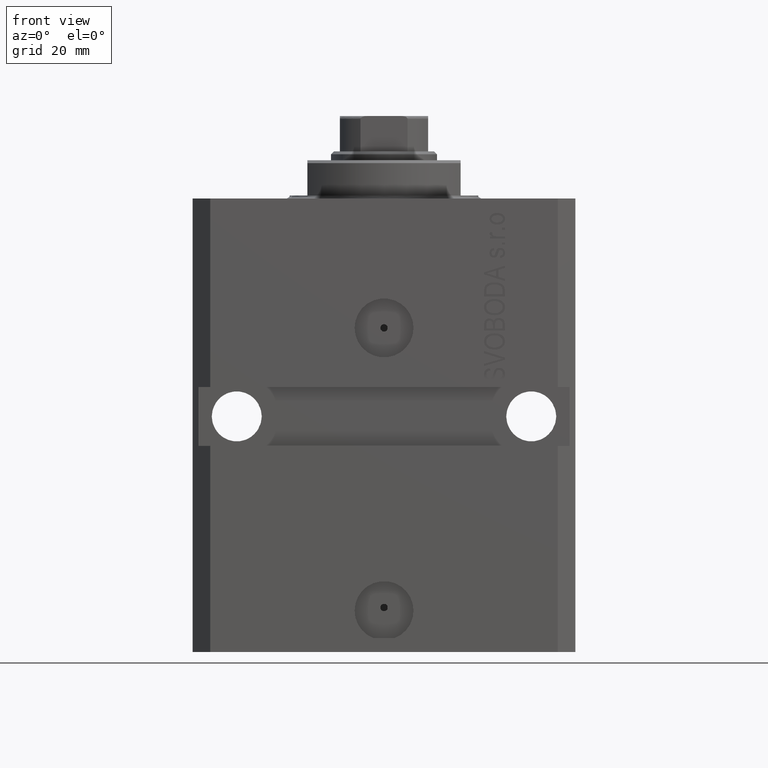
[diagram: clean part render]
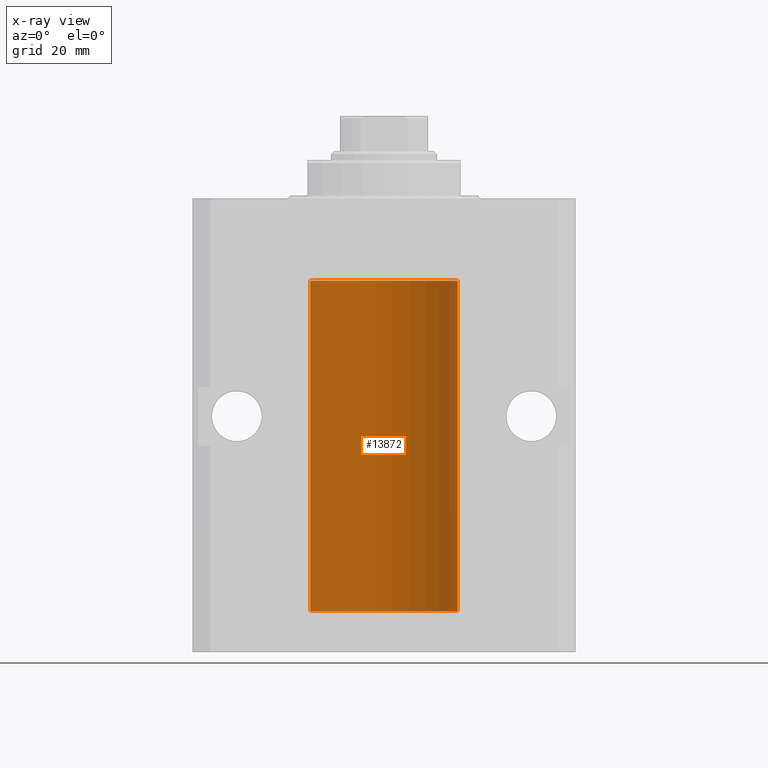
[diagram: x-ray — body ghosted, one internal face saturated and labeled with its STEP entity id]
A machine part, front view, then the same camera in x-ray: the body is ghosted and one INTERNAL B-rep face — a face not visible from any outside direction — is saturated and labeled: STEP entity #13872.
In plain terms, the highlighted cylindrical surface (partial cylindrical patch) has radius 12.5 mm, axis along (0, 0, 1).
Its self-contained STEP definition (entity closure, byte-faithful):
#57 = CARTESIAN_POINT ( 'NONE',  ( -12.49999999999999645, 0.08260426088728485550, -64.37499999999998579 ) ) ;
#352 = CARTESIAN_POINT ( 'NONE',  ( -12.49625855304193678, 0.3150454781038042329, -21.45402800297484802 ) ) ;
#655 = EDGE_CURVE ( 'NONE', #11588, #24028, #35823, .T. ) ;
#827 = CARTESIAN_POINT ( 'NONE',  ( -12.48436376893640443, 0.6250290278979917513, -22.08132082824473486 ) ) ;
#1000 = CARTESIAN_POINT ( 'NONE',  ( -12.48436376893640265, 0.6250290278979918623, -65.08132082824472775 ) ) ;
#1458 = VERTEX_POINT ( 'NONE', #25456 ) ;
#2059 = EDGE_CURVE ( 'NONE', #39254, #27133, #15784, .T. ) ;
#3106 = DIRECTION ( 'NONE',  ( 0.000000000000000000, 0.000000000000000000, 1.000000000000000000 ) ) ;
#3694 = CARTESIAN_POINT ( 'NONE',  ( -12.50000000000017941, 3.883381646606358354E-13, -22.62500000000358824 ) ) ;
#5340 = EDGE_CURVE ( 'NONE', #45628, #12289, #14874, .T. ) ;
#7133 = DIRECTION ( 'NONE',  ( -0.000000000000000000, -0.000000000000000000, 1.000000000000000000 ) ) ;
#7444 = CARTESIAN_POINT ( 'NONE',  ( -12.48810268015257741, 0.5573155909661293705, -64.67347410093867666 ) ) ;
#7506 = CARTESIAN_POINT ( 'NONE',  ( -12.48809959379011403, 0.5462151254764975317, -22.31461370481611795 ) ) ;
#9125 = ORIENTED_EDGE ( 'NONE', *, *, #19636, .T. ) ;
#10409 = ORIENTED_EDGE ( 'NONE', *, *, #23980, .T. ) ;
#11069 = CARTESIAN_POINT ( 'NONE',  ( -12.50000000000000000, 1.530808498934191521E-15, -70.09999999999999432 ) ) ;
#11545 = CARTESIAN_POINT ( 'NONE',  ( -12.50000000000000000, 1.530808498934191521E-15, -13.99999999999999822 ) ) ;
#11588 = VERTEX_POINT ( 'NONE', #28089 ) ;
#11956 = CARTESIAN_POINT ( 'NONE',  ( -12.49999999999999822, 0.1631761135151225950, -65.62499999999985789 ) ) ;
#12289 = VERTEX_POINT ( 'NONE', #35475 ) ;
#13499 = CARTESIAN_POINT ( 'NONE',  ( -12.50000000000000000, 1.530808498934191521E-15, -70.09999999999999432 ) ) ;
#13754 = ORIENTED_EDGE ( 'NONE', *, *, #655, .F. ) ;
#13872 = ADVANCED_FACE ( 'NONE', ( #39842 ), #43422, .F. ) ;
#14131 = DIRECTION ( 'NONE',  ( -0.000000000000000000, -0.000000000000000000, 1.000000000000000000 ) ) ;
#14287 = VECTOR ( 'NONE', #29214, 1000.000000000000000 ) ;
#14599 = CARTESIAN_POINT ( 'NONE',  ( -12.48436813453758809, 0.6249418250771181516, -64.83668996798922990 ) ) ;
#14874 = B_SPLINE_CURVE_WITH_KNOTS ( 'NONE', 3,
 ( #15079, #57, #22942, #37251, #40353, #7444, #14599, #1000, #26046, #15550, #44651, #43703, #11956, #25577 ),
 .UNSPECIFIED., .F., .F.,
 ( 4, 2, 2, 2, 2, 2, 4 ),
 ( 3.492495172846855184E-18, 0.0002442924852390798859, 0.0004885849704781563023, 0.0009771699409563386254, 0.001221462426195450658, 0.001465754911434562473, 0.001954339881912786538 ),
 .UNSPECIFIED. ) ;
#15079 = CARTESIAN_POINT ( 'NONE',  ( -12.50000000000000000, -1.053276923642966949E-14, -64.37500000000000000 ) ) ;
#15137 = CARTESIAN_POINT ( 'NONE',  ( -12.50000000000000000, 0.08260426088729219685, -21.37500000000000000 ) ) ;
#15419 = CIRCLE ( 'NONE', #39005, 12.50000000000000000 ) ;
#15550 = CARTESIAN_POINT ( 'NONE',  ( -12.48809959379011580, 0.5462151254764966435, -65.31461370481613926 ) ) ;
#15784 = CIRCLE ( 'NONE', #46250, 12.50000000000000000 ) ;
#17393 = CARTESIAN_POINT ( 'NONE',  ( 12.50000000000000000, 0.000000000000000000, -70.09999999999999432 ) ) ;
#18018 = CARTESIAN_POINT ( 'NONE',  ( -12.49011732893843529, 0.5003763274120274218, -22.38348111289287701 ) ) ;
#18253 = CARTESIAN_POINT ( 'NONE',  ( -12.49631005746706336, 0.3253680783018528255, -22.55856740465392463 ) ) ;
#18487 = CARTESIAN_POINT ( 'NONE',  ( -12.48520330846397819, 0.6088355886774127201, -22.16325431852561323 ) ) ;
#18542 = B_SPLINE_CURVE_WITH_KNOTS ( 'NONE', 3,
 ( #33264, #15137, #40416, #352, #36839, #36599, #44235, #827, #18487, #7506, #18018, #18253, #18966, #3694 ),
 .UNSPECIFIED., .F., .F.,
 ( 4, 2, 2, 2, 2, 2, 4 ),
 ( 2.030551168097110502E-20, 0.0002442924852390969078, 0.0004885849704781938157, 0.0009771699409563880650, 0.001221462426195485135, 0.001465754911434582423, 0.001954339881912776130 ),
 .UNSPECIFIED. ) ;
#18966 = CARTESIAN_POINT ( 'NONE',  ( -12.49999999999999289, 0.1631761135151241215, -22.62499999999984013 ) ) ;
#19636 = EDGE_CURVE ( 'NONE', #33376, #24028, #15419, .T. ) ;
#20383 = CARTESIAN_POINT ( 'NONE',  ( -12.50000000000000000, 1.530808498934191521E-15, -70.09999999999999432 ) ) ;
#21918 = ORIENTED_EDGE ( 'NONE', *, *, #2059, .F. ) ;
#22436 = DIRECTION ( 'NONE',  ( 1.000000000000000000, 0.000000000000000000, 0.000000000000000000 ) ) ;
#22488 = ORIENTED_EDGE ( 'NONE', *, *, #35777, .F. ) ;
#22535 = LINE ( 'NONE', #11069, #14287 ) ;
#22942 = CARTESIAN_POINT ( 'NONE',  ( -12.49915784441386890, 0.1636601911727943726, -64.39126818989430490 ) ) ;
#23980 = EDGE_CURVE ( 'NONE', #11588, #1458, #18542, .T. ) ;
#24028 = VERTEX_POINT ( 'NONE', #11545 ) ;
#25097 = CARTESIAN_POINT ( 'NONE',  ( -12.50000000000000000, 1.530808498934191521E-15, -70.09999999999999432 ) ) ;
#25255 = CARTESIAN_POINT ( 'NONE',  ( 12.50000000000000000, 0.000000000000000000, -13.99999999999999822 ) ) ;
#25456 = CARTESIAN_POINT ( 'NONE',  ( -12.50000000000017941, 3.883381646606358354E-13, -22.62500000000358824 ) ) ;
#25577 = CARTESIAN_POINT ( 'NONE',  ( -12.50000000000017941, 3.883381774819353300E-13, -65.62500000000359535 ) ) ;
#25775 = CARTESIAN_POINT ( 'NONE',  ( 0.000000000000000000, 0.000000000000000000, -70.09999999999999432 ) ) ;
#26046 = CARTESIAN_POINT ( 'NONE',  ( -12.48520330846398174, 0.6088355886774118320, -65.16325431852561678 ) ) ;
#26922 = ORIENTED_EDGE ( 'NONE', *, *, #5340, .T. ) ;
#27133 = VERTEX_POINT ( 'NONE', #13499 ) ;
#27507 = EDGE_LOOP ( 'NONE', ( #29030, #21918, #38937, #9125, #13754, #10409, #22488, #26922 ) ) ;
#28089 = CARTESIAN_POINT ( 'NONE',  ( -12.50000000000000000, -2.089494013101375120E-17, -21.37499999999999645 ) ) ;
#28292 = DIRECTION ( 'NONE',  ( 0.000000000000000000, 0.000000000000000000, 1.000000000000000000 ) ) ;
#28464 = EDGE_CURVE ( 'NONE', #27133, #12289, #35141, .T. ) ;
#29030 = ORIENTED_EDGE ( 'NONE', *, *, #28464, .F. ) ;
#29214 = DIRECTION ( 'NONE',  ( -0.000000000000000000, -0.000000000000000000, 1.000000000000000000 ) ) ;
#30921 = VECTOR ( 'NONE', #14131, 1000.000000000000000 ) ;
#32198 = DIRECTION ( 'NONE',  ( 1.000000000000000000, 0.000000000000000000, 0.000000000000000000 ) ) ;
#33264 = CARTESIAN_POINT ( 'NONE',  ( -12.50000000000000000, -2.089494013101375120E-17, -21.37499999999999645 ) ) ;
#33376 = VERTEX_POINT ( 'NONE', #25255 ) ;
#33638 = AXIS2_PLACEMENT_3D ( 'NONE', #25775, #39611, #22436 ) ;
#34406 = EDGE_CURVE ( 'NONE', #39254, #33376, #36942, .T. ) ;
#35141 = LINE ( 'NONE', #20383, #45409 ) ;
#35475 = CARTESIAN_POINT ( 'NONE',  ( -12.50000000000017941, 3.883381774819353300E-13, -65.62500000000359535 ) ) ;
#35777 = EDGE_CURVE ( 'NONE', #45628, #1458, #22535, .T. ) ;
#35779 = CARTESIAN_POINT ( 'NONE',  ( 0.000000000000000000, 0.000000000000000000, -70.09999999999999432 ) ) ;
#35823 = LINE ( 'NONE', #25097, #30921 ) ;
#36337 = VECTOR ( 'NONE', #7133, 1000.000000000000000 ) ;
#36599 = CARTESIAN_POINT ( 'NONE',  ( -12.48810268015257563, 0.5573155909661349217, -21.67347410093867666 ) ) ;
#36839 = CARTESIAN_POINT ( 'NONE',  ( -12.49422197749724006, 0.3843754434364375916, -21.50047099568095277 ) ) ;
#36942 = LINE ( 'NONE', #39807, #36337 ) ;
#37251 = CARTESIAN_POINT ( 'NONE',  ( -12.49625855304193500, 0.3150454781038046770, -64.45402800297485157 ) ) ;
#38937 = ORIENTED_EDGE ( 'NONE', *, *, #34406, .T. ) ;
#39005 = AXIS2_PLACEMENT_3D ( 'NONE', #45303, #28292, #46174 ) ;
#39254 = VERTEX_POINT ( 'NONE', #17393 ) ;
#39611 = DIRECTION ( 'NONE',  ( -0.000000000000000000, -0.000000000000000000, 1.000000000000000000 ) ) ;
#39807 = CARTESIAN_POINT ( 'NONE',  ( 12.50000000000000000, 0.000000000000000000, -70.09999999999999432 ) ) ;
#39842 = FACE_OUTER_BOUND ( 'NONE', #27507, .T. ) ;
#40353 = CARTESIAN_POINT ( 'NONE',  ( -12.49422197749724361, 0.3843754434364307082, -64.50047099568097053 ) ) ;
#40416 = CARTESIAN_POINT ( 'NONE',  ( -12.49915784441386890, 0.1636601911727947889, -21.39126818989430490 ) ) ;
#41795 = CARTESIAN_POINT ( 'NONE',  ( -12.50000000000000000, -1.053276923642966949E-14, -64.37500000000000000 ) ) ;
#43422 = CYLINDRICAL_SURFACE ( 'NONE', #33638, 12.50000000000000000 ) ;
#43703 = CARTESIAN_POINT ( 'NONE',  ( -12.49631005746706514, 0.3253680783018499389, -65.55856740465391397 ) ) ;
#44235 = CARTESIAN_POINT ( 'NONE',  ( -12.48436813453758454, 0.6249418250771192618, -21.83668996798922635 ) ) ;
#44651 = CARTESIAN_POINT ( 'NONE',  ( -12.49011732893843885, 0.5003763274120245352, -65.38348111289289477 ) ) ;
#45303 = CARTESIAN_POINT ( 'NONE',  ( 0.000000000000000000, 0.000000000000000000, -13.99999999999999822 ) ) ;
#45409 = VECTOR ( 'NONE', #45878, 1000.000000000000000 ) ;
#45628 = VERTEX_POINT ( 'NONE', #41795 ) ;
#45878 = DIRECTION ( 'NONE',  ( -0.000000000000000000, -0.000000000000000000, 1.000000000000000000 ) ) ;
#46174 = DIRECTION ( 'NONE',  ( 1.000000000000000000, 0.000000000000000000, 0.000000000000000000 ) ) ;
#46250 = AXIS2_PLACEMENT_3D ( 'NONE', #35779, #3106, #32198 ) ;